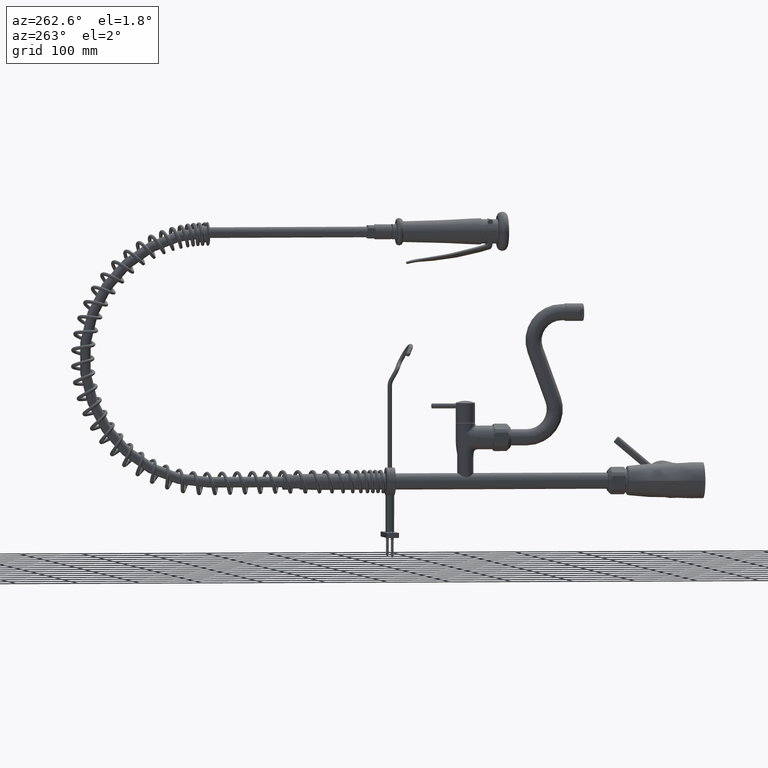
[diagram: clean part render]
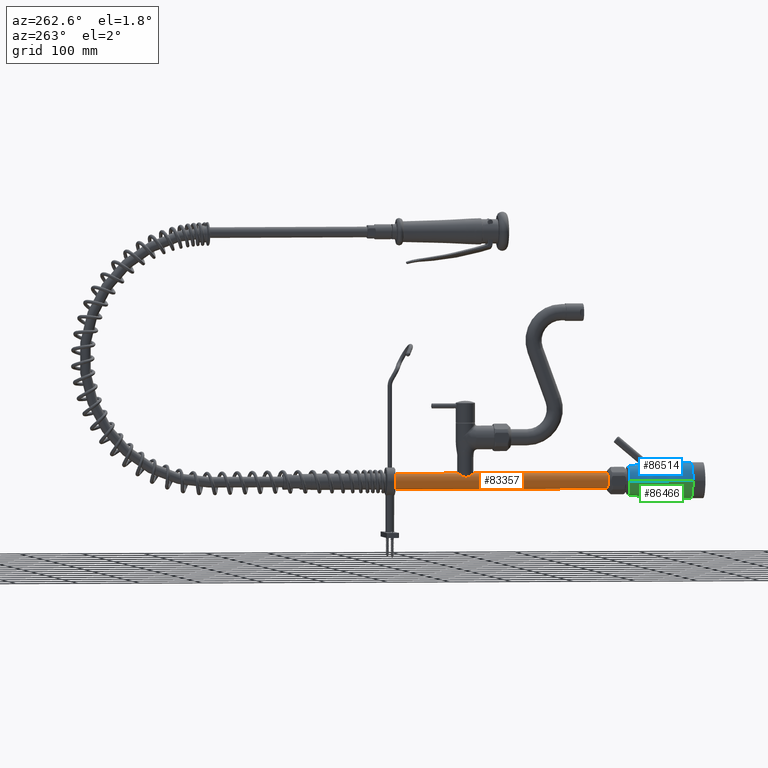
[diagram: same view with three faces highlighted in distinct colors, each labeled with its STEP entity id]
A machine part, auxiliary view with three faces highlighted in distinct colors.
Their STEP definitions:

[orange] entity #83357 — the highlighted cylindrical surface (edge-blend (fillet) strip) has radius 13 mm, axis along (0, 1, 0).
#1416=CARTESIAN_POINT('',(0.E0,1.55E2,0.E0));
#1417=DIRECTION('',(0.E0,1.E0,0.E0));
#1418=DIRECTION('',(0.E0,0.E0,-1.E0));
#1419=AXIS2_PLACEMENT_3D('',#1416,#1417,#1418);
#1440=CARTESIAN_POINT('',(2.362573127145E-14,3.710884572681E2,1.3E1));
#1541=CARTESIAN_POINT('',(2.383610362582E-14,3.969115427319E2,1.3E1));
#42753=CARTESIAN_POINT('',(2.424720580568E-14,4.98E2,0.E0));
#42754=DIRECTION('',(0.E0,1.E0,0.E0));
#42755=DIRECTION('',(0.E0,0.E0,-1.E0));
#42756=AXIS2_PLACEMENT_3D('',#42753,#42754,#42755);
#42761=DIRECTION('',(0.E0,-1.E0,0.E0));
#42762=VECTOR('',#42761,1.010884572681E2);
#42763=CARTESIAN_POINT('',(3.353677542233E-14,4.98E2,1.3E1));
#42764=LINE('',#42763,#42762);
#42768=CARTESIAN_POINT('',(2.383610362582E-14,3.969115427319E2,1.3E1));
#42769=CARTESIAN_POINT('',(-1.068027594549E-1,3.969115427319E2,1.3E1));
#42770=CARTESIAN_POINT('',(-3.206273026455E-1,3.969081873905E2,
1.299736777190E1));
#42771=CARTESIAN_POINT('',(-6.418739761263E-1,3.968930210425E2,
1.298547310126E1));
#42772=CARTESIAN_POINT('',(-9.632864027836E-1,3.968676633161E2,
1.296559618015E1));
#42773=CARTESIAN_POINT('',(-1.284654514927E0,3.968320657192E2,
1.293771518030E1));
#42774=CARTESIAN_POINT('',(-1.606582230855E0,3.967860403778E2,
1.290170613345E1));
#42775=CARTESIAN_POINT('',(-1.928641428140E0,3.967294751870E2,
1.285751214780E1));
#42776=CARTESIAN_POINT('',(-2.250288773213E0,3.966623407177E2,
1.280514858573E1));
#42777=CARTESIAN_POINT('',(-2.572978022084E0,3.965841125760E2,
1.274425405385E1));
#42778=CARTESIAN_POINT('',(-2.896321010995E0,3.964945490799E2,
1.267469913136E1));
#42779=CARTESIAN_POINT('',(-3.219704116067E0,3.963935227655E2,
1.259645422824E1));
#42780=CARTESIAN_POINT('',(-3.543399877358E0,3.962806190335E2,
1.250928026712E1));
#42781=CARTESIAN_POINT('',(-3.867397890142E0,3.961554308552E2,
1.241296073966E1));
#42782=CARTESIAN_POINT('',(-4.191150199503E0,3.960177455523E2,
1.230744605597E1));
#42783=CARTESIAN_POINT('',(-4.514907703198E0,3.958669898875E2,
1.219243025087E1));
#42784=CARTESIAN_POINT('',(-4.838666840187E0,3.957025888533E2,
1.206763326871E1));
#42785=CARTESIAN_POINT('',(-5.161629273442E0,3.955243518012E2,
1.193309440343E1));
#42786=CARTESIAN_POINT('',(-5.483774559776E0,3.953316609255E2,
1.178856089977E1));
#42787=CARTESIAN_POINT('',(-5.804842563359E0,3.951239389240E2,
1.163385179618E1));
#42788=CARTESIAN_POINT('',(-6.124215020875E0,3.949008034415E2,
1.146897573498E1));
#42789=CARTESIAN_POINT('',(-6.441444001675E0,3.946617313848E2,
1.129388742304E1));
#42790=CARTESIAN_POINT('',(-6.755858779615E0,3.944063209801E2,
1.110869067868E1));
#42791=CARTESIAN_POINT('',(-7.066641228531E0,3.941343012379E2,
1.091364767848E1));
#42792=CARTESIAN_POINT('',(-7.373335717315E0,3.938450492224E2,
1.070884690611E1));
#42793=CARTESIAN_POINT('',(-7.674831284932E0,3.935385309043E2,
1.049488353816E1));
#42794=CARTESIAN_POINT('',(-7.970192551846E0,3.932146009242E2,
1.027236583937E1));
#42795=CARTESIAN_POINT('',(-8.257988923178E0,3.928737540112E2,
1.004243763496E1));
#42796=CARTESIAN_POINT('',(-8.536851030887E0,3.925166392862E2,
9.806431742627E0));
#42797=CARTESIAN_POINT('',(-8.805115784050E0,3.921446045431E2,
9.566211275419E0));
#42798=CARTESIAN_POINT('',(-9.061718667195E0,3.917585585018E2,
9.323407321144E0));
#42799=CARTESIAN_POINT('',(-9.305534605609E0,3.913597593830E2,
9.079943757801E0));
#42800=CARTESIAN_POINT('',(-9.535161219487E0,3.909504557058E2,
8.838348417321E0));
#42801=CARTESIAN_POINT('',(-9.749880366392E0,3.905321790385E2,
8.600715196122E0));
#42802=CARTESIAN_POINT('',(-9.947448063676E0,3.901103726780E2,
8.371196119862E0));
#42803=CARTESIAN_POINT('',(-1.012735726618E1,3.896883740194E2,
8.152389854454E0));
#42804=CARTESIAN_POINT('',(-1.028978029195E1,3.892686279669E2,
7.946165602483E0));
#42805=CARTESIAN_POINT('',(-1.043516619930E1,3.888533169235E2,
7.754022202065E0));
#42806=CARTESIAN_POINT('',(-1.056374706554E1,3.884458953882E2,
7.577697335045E0));
#42807=CARTESIAN_POINT('',(-1.067671605279E1,3.880473662080E2,
7.417489644353E0));
#42808=CARTESIAN_POINT('',(-1.077543217290E1,3.876577310368E2,
7.273174251070E0));
#42809=CARTESIAN_POINT('',(-1.086107862824E1,3.872771502816E2,
7.144504029006E0));
#42810=CARTESIAN_POINT('',(-1.093481401514E1,3.869053421482E2,
7.031011300515E0));
#42811=CARTESIAN_POINT('',(-1.099765345392E1,3.865420821360E2,
6.932208482860E0));
#42812=CARTESIAN_POINT('',(-1.105057396106E1,3.861866011938E2,
6.847452055394E0));
#42813=CARTESIAN_POINT('',(-1.109438544580E1,3.858383190166E2,
6.776172803804E0));
#42814=CARTESIAN_POINT('',(-1.112985937455E1,3.854958628202E2,
6.717697497245E0));
#42815=CARTESIAN_POINT('',(-1.115756744325E1,3.851581555542E2,
6.671537002647E0));
#42816=CARTESIAN_POINT('',(-1.117793638292E1,3.848246180343E2,
6.637325591925E0));
#42817=CARTESIAN_POINT('',(-1.119134344011E1,3.844935961746E2,
6.614676958486E0));
#42818=CARTESIAN_POINT('',(-1.119798751431E1,3.841641941868E2,
6.603414288734E0));
#42819=CARTESIAN_POINT('',(-1.119798594770E1,3.838356543785E2,
6.603416947148E0));
#42820=CARTESIAN_POINT('',(-1.119133901950E1,3.835062577299E2,
6.614684443606E0));
#42821=CARTESIAN_POINT('',(-1.117792862856E1,3.831752285209E2,
6.637338662233E0));
#42822=CARTESIAN_POINT('',(-1.115755653075E1,3.828416924881E2,
6.671555264515E0));
#42823=CARTESIAN_POINT('',(-1.112984549199E1,3.825039869389E2,
6.717720521430E0));
#42824=CARTESIAN_POINT('',(-1.109436684552E1,3.821615184728E2,
6.776203284457E0));
#42825=CARTESIAN_POINT('',(-1.105055225287E1,3.818132408881E2,
6.847487114600E0));
#42826=CARTESIAN_POINT('',(-1.099762757136E1,3.814577566923E2,
6.932249586148E0));
#42827=CARTESIAN_POINT('',(-1.093478301117E1,3.810944904098E2,
7.031059578113E0));
#42828=CARTESIAN_POINT('',(-1.086104152889E1,3.807226742256E2,
7.144560488262E0));
#42829=CARTESIAN_POINT('',(-1.077539102731E1,3.803420972854E2,
7.273235230193E0));
#42830=CARTESIAN_POINT('',(-1.067667335354E1,3.799524750599E2,
7.417551121386E0));
#42831=CARTESIAN_POINT('',(-1.056370373117E1,3.795539607758E2,
7.577757677673E0));
#42832=CARTESIAN_POINT('',(-1.043512725040E1,3.791465663870E2,
7.754074603636E0));
#42833=CARTESIAN_POINT('',(-1.028973478587E1,3.787312479639E2,
7.946224676521E0));
#42834=CARTESIAN_POINT('',(-1.012730344033E1,3.783114934689E2,
8.152456798712E0));
#42835=CARTESIAN_POINT('',(-9.947392485929E0,3.778895034930E2,
8.371262086047E0));
#42836=CARTESIAN_POINT('',(-9.749825103512E0,3.774677079957E2,
8.600777984557E0));
#42837=CARTESIAN_POINT('',(-9.535091347815E0,3.770494139341E2,
8.838423915717E0));
#42838=CARTESIAN_POINT('',(-9.305469338114E0,3.766401300479E2,
9.080010382124E0));
#42839=CARTESIAN_POINT('',(-9.061666411906E0,3.762413600622E2,
9.323457926876E0));
#42840=CARTESIAN_POINT('',(-8.805067271207E0,3.758553255061E2,
9.566255897392E0));
#42841=CARTESIAN_POINT('',(-8.536800110001E0,3.754832926628E2,
9.806476179383E0));
#42842=CARTESIAN_POINT('',(-8.257925583775E0,3.751261676331E2,
1.004248991255E1));
#42843=CARTESIAN_POINT('',(-7.970120338029E0,3.747853168260E2,
1.027242185877E1));
#42844=CARTESIAN_POINT('',(-7.674763433205E0,3.744613976167E2,
1.049493307674E1));
#42845=CARTESIAN_POINT('',(-7.373267799058E0,3.741548842501E2,
1.070889368655E1));
#42846=CARTESIAN_POINT('',(-7.066569451101E0,3.738656334492E2,
1.091369421615E1));
#42847=CARTESIAN_POINT('',(-6.755780750136E0,3.735936131673E2,
1.110873816712E1));
#42848=CARTESIAN_POINT('',(-6.441365167803E0,3.733382069706E2,
1.129393235904E1));
#42849=CARTESIAN_POINT('',(-6.124136726043E0,3.730991397550E2,
1.146901753105E1));
#42850=CARTESIAN_POINT('',(-5.804764163393E0,3.728760083928E2,
1.163389088818E1));
#42851=CARTESIAN_POINT('',(-5.483696788876E0,3.726682906441E2,
1.178859710145E1));
#42852=CARTESIAN_POINT('',(-5.161546302259E0,3.724756004946E2,
1.193313030256E1));
#42853=CARTESIAN_POINT('',(-4.838587134586E0,3.722973690218E2,
1.206766516441E1));
#42854=CARTESIAN_POINT('',(-4.514830406486E0,3.721329724900E2,
1.219245888484E1));
#42855=CARTESIAN_POINT('',(-4.191070756136E0,3.719822191213E2,
1.230747307259E1));
#42856=CARTESIAN_POINT('',(-3.867327136420E0,3.718445405688E2,
1.241298268866E1));
#42857=CARTESIAN_POINT('',(-3.543333795348E0,3.717193566838E2,
1.250929898478E1));
#42858=CARTESIAN_POINT('',(-3.219636917424E0,3.716064550661E2,
1.259647137360E1));
#42859=CARTESIAN_POINT('',(-2.896262143305E0,3.715054337030E2,
1.267471248732E1));
#42860=CARTESIAN_POINT('',(-2.572925899883E0,3.714158739033E2,
1.274426456736E1));
#42861=CARTESIAN_POINT('',(-2.250235421425E0,3.713376472866E2,
1.280515793393E1));
#42862=CARTESIAN_POINT('',(-1.928598585766E0,3.712705167522E2,
1.285751844219E1));
#42863=CARTESIAN_POINT('',(-1.606554034232E0,3.712139552560E2,
1.290170954790E1));
#42864=CARTESIAN_POINT('',(-1.284632813907E0,3.711679315573E2,
1.293771731250E1));
#42865=CARTESIAN_POINT('',(-9.632681230268E-1,3.711323350339E2,
1.296559747325E1));
#42866=CARTESIAN_POINT('',(-6.418667191279E-1,3.711069786007E2,
1.298547338118E1));
#42867=CARTESIAN_POINT('',(-3.206253809486E-1,3.710918125828E2,
1.299736779286E1));
#42868=CARTESIAN_POINT('',(-1.068025374648E-1,3.710884572681E2,1.3E1));
#42869=CARTESIAN_POINT('',(2.362573127145E-14,3.710884572681E2,1.3E1));
#42874=DIRECTION('',(0.E0,-1.E0,0.E0));
#42875=VECTOR('',#42874,2.160884572681E2);
#42876=CARTESIAN_POINT('',(2.362573127145E-14,3.710884572681E2,1.3E1));
#42877=LINE('',#42876,#42875);
#42881=DIRECTION('',(0.E0,-1.E0,0.E0));
#42882=VECTOR('',#42881,3.43E2);
#42883=CARTESIAN_POINT('',(2.902562632584E-14,4.98E2,-1.3E1));
#42884=LINE('',#42883,#42882);
#49030=CARTESIAN_POINT('',(1.061035482565E-14,1.55E2,1.3E1));
#49031=CARTESIAN_POINT('',(0.E0,1.55E2,-1.3E1));
#49032=VERTEX_POINT('',#49030);
#49033=VERTEX_POINT('',#49031);
#49080=VERTEX_POINT('',#1440);
#49081=VERTEX_POINT('',#1541);
#49174=CARTESIAN_POINT('',(2.583919406565E-14,4.98E2,1.3E1));
#49175=CARTESIAN_POINT('',(2.424725838461E-14,4.98E2,-1.3E1));
#49176=VERTEX_POINT('',#49174);
#49177=VERTEX_POINT('',#49175);
#83343=CARTESIAN_POINT('',(0.E0,1.0375E2,0.E0));
#83344=DIRECTION('',(0.E0,1.E0,0.E0));
#83345=DIRECTION('',(0.E0,0.E0,-1.E0));
#83346=AXIS2_PLACEMENT_3D('',#83343,#83344,#83345);
#83347=CYLINDRICAL_SURFACE('',#83346,1.3E1);
#83348=ORIENTED_EDGE('',*,*,#51062,.T.);
#83349=ORIENTED_EDGE('',*,*,#51038,.T.);
#83351=ORIENTED_EDGE('',*,*,#83350,.T.);
#83352=ORIENTED_EDGE('',*,*,#51034,.T.);
#83353=ORIENTED_EDGE('',*,*,#50993,.F.);
#83354=ORIENTED_EDGE('',*,*,#51031,.F.);
#83355=EDGE_LOOP('',(#83348,#83349,#83351,#83352,#83353,#83354));
#83356=FACE_OUTER_BOUND('',#83355,.F.);
#1420=CIRCLE('',#1419,1.3E1);
#42757=CIRCLE('',#42756,1.3E1);
#42870=B_SPLINE_CURVE_WITH_KNOTS('',3,(#42768,#42769,#42770,#42771,#42772,
#42773,#42774,#42775,#42776,#42777,#42778,#42779,#42780,#42781,#42782,#42783,
#42784,#42785,#42786,#42787,#42788,#42789,#42790,#42791,#42792,#42793,#42794,
#42795,#42796,#42797,#42798,#42799,#42800,#42801,#42802,#42803,#42804,#42805,
#42806,#42807,#42808,#42809,#42810,#42811,#42812,#42813,#42814,#42815,#42816,
#42817,#42818,#42819,#42820,#42821,#42822,#42823,#42824,#42825,#42826,#42827,
#42828,#42829,#42830,#42831,#42832,#42833,#42834,#42835,#42836,#42837,#42838,
#42839,#42840,#42841,#42842,#42843,#42844,#42845,#42846,#42847,#42848,#42849,
#42850,#42851,#42852,#42853,#42854,#42855,#42856,#42857,#42858,#42859,#42860,
#42861,#42862,#42863,#42864,#42865,#42866,#42867,#42868,#42869),.UNSPECIFIED.,
.F.,.F.,(4,1,1,1,1,1,1,1,1,1,1,1,1,1,1,1,1,1,1,1,1,1,1,1,1,1,1,1,1,1,1,1,1,1,1,
1,1,1,1,1,1,1,1,1,1,1,1,1,1,1,1,1,1,1,1,1,1,1,1,1,1,1,1,1,1,1,1,1,1,1,1,1,1,1,1,
1,1,1,1,1,1,1,1,1,1,1,1,1,1,1,1,1,1,1,1,1,1,1,1,4),(0.E0,1.010101010101E-2,
2.020202020202E-2,3.030303030303E-2,4.040404040404E-2,5.050505050505E-2,
6.060606060606E-2,7.070707070707E-2,8.080808080808E-2,9.090909090909E-2,
1.010101010101E-1,1.111111111111E-1,1.212121212121E-1,1.313131313131E-1,
1.414141414141E-1,1.515151515152E-1,1.616161616162E-1,1.717171717172E-1,
1.818181818182E-1,1.919191919192E-1,2.020202020202E-1,2.121212121212E-1,
2.222222222222E-1,2.323232323232E-1,2.424242424242E-1,2.525252525253E-1,
2.626262626263E-1,2.727272727273E-1,2.828282828283E-1,2.929292929293E-1,
3.030303030303E-1,3.131313131313E-1,3.232323232323E-1,3.333333333333E-1,
3.434343434343E-1,3.535353535354E-1,3.636363636364E-1,3.737373737374E-1,
3.838383838384E-1,3.939393939394E-1,4.040404040404E-1,4.141414141414E-1,
4.242424242424E-1,4.343434343434E-1,4.444444444444E-1,4.545454545455E-1,
4.646464646465E-1,4.747474747475E-1,4.848484848485E-1,4.949494949495E-1,
5.050505050505E-1,5.151515151515E-1,5.252525252525E-1,5.353535353535E-1,
5.454545454545E-1,5.555555555556E-1,5.656565656566E-1,5.757575757576E-1,
5.858585858586E-1,5.959595959596E-1,6.060606060606E-1,6.161616161616E-1,
6.262626262626E-1,6.363636363636E-1,6.464646464646E-1,6.565656565657E-1,
6.666666666667E-1,6.767676767677E-1,6.868686868687E-1,6.969696969697E-1,
7.070707070707E-1,7.171717171717E-1,7.272727272727E-1,7.373737373737E-1,
7.474747474747E-1,7.575757575758E-1,7.676767676768E-1,7.777777777778E-1,
7.878787878788E-1,7.979797979798E-1,8.080808080808E-1,8.181818181818E-1,
8.282828282828E-1,8.383838383838E-1,8.484848484848E-1,8.585858585859E-1,
8.686868686869E-1,8.787878787879E-1,8.888888888889E-1,8.989898989899E-1,
9.090909090909E-1,9.191919191919E-1,9.292929292929E-1,9.393939393939E-1,
9.494949494949E-1,9.595959595960E-1,9.696969696970E-1,9.797979797980E-1,
9.898989898990E-1,1.E0),.UNSPECIFIED.);
#50993=EDGE_CURVE('',#49033,#49032,#1420,.T.);
#51031=EDGE_CURVE('',#49177,#49033,#42884,.T.);
#51034=EDGE_CURVE('',#49080,#49032,#42877,.T.);
#51038=EDGE_CURVE('',#49176,#49081,#42764,.T.);
#51062=EDGE_CURVE('',#49177,#49176,#42757,.T.);
#83350=EDGE_CURVE('',#49081,#49080,#42870,.T.);
#83357=ADVANCED_FACE('',(#83356),#83347,.T.);

[blue] entity #86514 — the highlighted face is a freeform B-spline surface patch.
#46798=CARTESIAN_POINT('',(2.222483315655E-14,1.209801908876E2,0.E0));
#46799=DIRECTION('',(0.E0,1.E0,0.E0));
#46800=DIRECTION('',(-1.E0,0.E0,0.E0));
#46801=AXIS2_PLACEMENT_3D('',#46798,#46799,#46800);
#46806=CARTESIAN_POINT('',(-9.377045454545E2,2.E1,-1.148356570137E-13));
#46807=DIRECTION('',(0.E0,0.E0,-1.E0));
#46808=DIRECTION('',(9.945281455174E-1,1.044689799593E-1,0.E0));
#46809=AXIS2_PLACEMENT_3D('',#46806,#46807,#46808);
#46814=CARTESIAN_POINT('',(9.377045454545E2,2.E1,0.E0));
#46815=DIRECTION('',(0.E0,0.E0,1.E0));
#46816=DIRECTION('',(-9.945281455174E-1,1.044689799593E-1,0.E0));
#46817=AXIS2_PLACEMENT_3D('',#46814,#46815,#46816);
#46822=CARTESIAN_POINT('',(2.650550156758E1,8.799504048502E1,
-7.931748644661E-9));
#46823=CARTESIAN_POINT('',(2.650550321507E1,8.799500576940E1,
2.577802362688E-1));
#46824=CARTESIAN_POINT('',(2.649866406319E1,8.798539533703E1,
7.750772611048E-1));
#46825=CARTESIAN_POINT('',(2.646742192747E1,8.794225554507E1,1.555446008014E0));
#46826=CARTESIAN_POINT('',(2.641476121421E1,8.786972451362E1,2.340602900860E0));
#46827=CARTESIAN_POINT('',(2.634018530382E1,8.776695879380E1,3.130424697151E0));
#46828=CARTESIAN_POINT('',(2.624317177370E1,8.763299604001E1,3.924760518181E0));
#46829=CARTESIAN_POINT('',(2.612310905665E1,8.746730807959E1,4.723481726660E0));
#46830=CARTESIAN_POINT('',(2.597936734750E1,8.726912042123E1,5.526319931510E0));
#46831=CARTESIAN_POINT('',(2.581133206561E1,8.703756702833E1,6.332826267043E0));
#46832=CARTESIAN_POINT('',(2.561799261258E1,8.677098064594E1,7.144065781782E0));
#46833=CARTESIAN_POINT('',(2.539810877435E1,8.646781512667E1,7.960969672166E0));
#46834=CARTESIAN_POINT('',(2.515030445223E1,8.612635146366E1,8.784170873239E0));
#46835=CARTESIAN_POINT('',(2.487313998024E1,8.574470757676E1,9.613868071742E0));
#46836=CARTESIAN_POINT('',(2.456518979332E1,8.532085211655E1,1.044977318875E1));
#46837=CARTESIAN_POINT('',(2.422499414355E1,8.485254017614E1,1.129136325818E1));
#46838=CARTESIAN_POINT('',(2.385102259310E1,8.433786264441E1,1.213792199464E1));
#46839=CARTESIAN_POINT('',(2.344141111084E1,8.377438079136E1,1.298913770953E1));
#46840=CARTESIAN_POINT('',(2.299421871163E1,8.315973838493E1,1.384435929203E1));
#46841=CARTESIAN_POINT('',(2.250765844341E1,8.249107539508E1,1.470237759165E1));
#46842=CARTESIAN_POINT('',(2.197980980416E1,8.176567229491E1,1.556188550927E1));
#46843=CARTESIAN_POINT('',(2.140874819928E1,8.098090818005E1,1.642126483533E1));
#46844=CARTESIAN_POINT('',(2.079253826941E1,8.013456091803E1,1.727859361527E1));
#46845=CARTESIAN_POINT('',(2.012952228119E1,7.922414918299E1,1.813140453481E1));
#46846=CARTESIAN_POINT('',(1.941835728606E1,7.824724428777E1,1.897675077549E1));
#46847=CARTESIAN_POINT('',(1.865774785163E1,7.720184614323E1,1.981154058167E1));
#46848=CARTESIAN_POINT('',(1.784655350866E1,7.608664473974E1,2.063239389343E1));
#46849=CARTESIAN_POINT('',(1.698450431181E1,7.490031933260E1,2.143519315978E1));
#46850=CARTESIAN_POINT('',(1.607133113759E1,7.364151379777E1,2.221596063032E1));
#46851=CARTESIAN_POINT('',(1.510818489522E1,7.231121224951E1,2.296966098799E1));
#46852=CARTESIAN_POINT('',(1.409792353983E1,7.091102320946E1,2.369068789733E1));
#46853=CARTESIAN_POINT('',(1.304032389748E1,6.943868818069E1,2.437608257085E1));
#46854=CARTESIAN_POINT('',(1.193710698165E1,6.789236046227E1,2.502147944653E1));
#46855=CARTESIAN_POINT('',(1.081158776977E1,6.629992912654E1,2.561179790150E1));
#46856=CARTESIAN_POINT('',(9.724868654236E0,6.473937643163E1,2.612041615467E1));
#46857=CARTESIAN_POINT('',(8.762524902976E0,6.333008650939E1,2.652425518856E1));
#46858=CARTESIAN_POINT('',(7.921918995974E0,6.207070488728E1,2.684381557100E1));
#46859=CARTESIAN_POINT('',(7.197284042712E0,6.095066803807E1,2.709572820898E1));
#46860=CARTESIAN_POINT('',(6.570009532270E0,5.993971309371E1,2.729733457327E1));
#46861=CARTESIAN_POINT('',(6.030304942335E0,5.902772055056E1,2.745913106846E1));
#46862=CARTESIAN_POINT('',(5.571193945034E0,5.820395615988E1,2.758906706019E1));
#46863=CARTESIAN_POINT('',(5.181336071904E0,5.746319355207E1,2.769409305082E1));
#46864=CARTESIAN_POINT('',(4.858324767791E0,5.678700245143E1,2.777867888024E1));
#46865=CARTESIAN_POINT('',(4.597488073597E0,5.616520288936E1,2.784663444456E1));
#46866=CARTESIAN_POINT('',(4.388838437177E0,5.559688880895E1,2.790151547917E1));
#46867=CARTESIAN_POINT('',(4.224787126848E0,5.507914765958E1,2.794588494335E1));
#46868=CARTESIAN_POINT('',(4.102815580798E0,5.461012373313E1,2.798108239540E1));
#46869=CARTESIAN_POINT('',(4.017395574320E0,5.418903442516E1,2.800858194583E1));
#46870=CARTESIAN_POINT('',(3.960700830789E0,5.380143539737E1,2.803040984341E1));
#46871=CARTESIAN_POINT('',(3.927388487084E0,5.342191553508E1,2.804842312470E1));
#46872=CARTESIAN_POINT('',(3.917145070897E0,5.303075910421E1,2.806343243949E1));
#46873=CARTESIAN_POINT('',(3.928031791422E0,5.262203631746E1,2.807596219370E1));
#46874=CARTESIAN_POINT('',(3.964020956777E0,5.218895049647E1,2.808550718505E1));
#46875=CARTESIAN_POINT('',(4.003351664417E0,5.187786523260E1,2.809052720433E1));
#46876=CARTESIAN_POINT('',(4.030719544120E0,5.171782581966E1,2.809184103671E1));
#47011=CARTESIAN_POINT('',(2.650550156758E1,8.799504048502E1,
-7.931748644661E-9));
#47300=CARTESIAN_POINT('',(0.E0,2.E1,0.E0));
#47301=DIRECTION('',(0.E0,1.E0,0.E0));
#47302=DIRECTION('',(-1.E0,0.E0,0.E0));
#47303=AXIS2_PLACEMENT_3D('',#47300,#47301,#47302);
#47371=CARTESIAN_POINT('',(4.030719544120E0,5.171782581966E1,2.809184103671E1));
#47372=CARTESIAN_POINT('',(4.056857018608E0,5.157283897684E1,2.809290054752E1));
#47373=CARTESIAN_POINT('',(4.118004036888E0,5.128340292716E1,2.809348792987E1));
#47374=CARTESIAN_POINT('',(4.231556768315E0,5.084944046184E1,2.809079133923E1));
#47375=CARTESIAN_POINT('',(4.367311506481E0,5.041792769623E1,2.808387610398E1));
#47376=CARTESIAN_POINT('',(4.522606933936E0,4.998980431921E1,2.807287808690E1));
#47377=CARTESIAN_POINT('',(4.694246583885E0,4.956377125667E1,2.805803410588E1));
#47378=CARTESIAN_POINT('',(4.884067341040E0,4.912948342173E1,2.803905534630E1));
#47379=CARTESIAN_POINT('',(5.094547114249E0,4.868362996253E1,2.801518105994E1));
#47380=CARTESIAN_POINT('',(5.317582309102E0,4.824048271588E1,2.798701596314E1));
#47381=CARTESIAN_POINT('',(5.551073863643E0,4.779782214789E1,2.795477521884E1));
#47382=CARTESIAN_POINT('',(5.806895480901E0,4.733360374035E1,2.791637642532E1));
#47383=CARTESIAN_POINT('',(6.095517870084E0,4.683073259932E1,2.786935785041E1));
#47384=CARTESIAN_POINT('',(6.429161224774E0,4.626888126208E1,2.781034813244E1));
#47385=CARTESIAN_POINT('',(6.813481765266E0,4.564301280379E1,2.773627708502E1));
#47386=CARTESIAN_POINT('',(7.250649419685E0,4.495247512137E1,2.764422281167E1));
#47387=CARTESIAN_POINT('',(7.741951204955E0,4.419620475785E1,2.753104563197E1));
#47388=CARTESIAN_POINT('',(8.295651413591E0,4.336410071234E1,2.739121560692E1));
#47389=CARTESIAN_POINT('',(8.919818265989E0,4.244470862121E1,2.721797350690E1));
#47390=CARTESIAN_POINT('',(9.625409897444E0,4.142416944266E1,2.700206870136E1));
#47391=CARTESIAN_POINT('',(1.042753308288E1,4.028197919503E1,2.673026928814E1));
#47392=CARTESIAN_POINT('',(1.133604194250E1,3.900585218327E1,2.638785631741E1));
#47393=CARTESIAN_POINT('',(1.236824585895E1,3.757313617966E1,2.595227019204E1));
#47394=CARTESIAN_POINT('',(1.348236699224E1,3.604216578764E1,2.542267799717E1));
#47395=CARTESIAN_POINT('',(1.460388642347E1,3.451307974631E1,2.482373778081E1));
#47396=CARTESIAN_POINT('',(1.569904128628E1,3.302886776417E1,2.417093797016E1));
#47397=CARTESIAN_POINT('',(1.673826185450E1,3.162681575437E1,2.348462406799E1));
#47398=CARTESIAN_POINT('',(1.772697990480E1,3.029747376035E1,2.276628129457E1));
#47399=CARTESIAN_POINT('',(1.866865015547E1,2.903489015476E1,2.201687147483E1));
#47400=CARTESIAN_POINT('',(1.956208378544E1,2.783959499451E1,2.124076089990E1));
#47401=CARTESIAN_POINT('',(2.040554705852E1,2.671302672962E1,2.044329356061E1));
#47402=CARTESIAN_POINT('',(2.119829351913E1,2.565582670934E1,1.962950882050E1));
#47403=CARTESIAN_POINT('',(2.194177848687E1,2.466516648119E1,1.880240627352E1));
#47404=CARTESIAN_POINT('',(2.263755876547E1,2.373900647522E1,1.796463520745E1));
#47405=CARTESIAN_POINT('',(2.328737467011E1,2.287494581238E1,1.711840469904E1));
#47406=CARTESIAN_POINT('',(2.389285201761E1,2.207037462655E1,1.626581476963E1));
#47407=CARTESIAN_POINT('',(2.445541880273E1,2.132287763309E1,1.540903054182E1));
#47408=CARTESIAN_POINT('',(2.497657498339E1,2.063065965324E1,1.455005397580E1));
#47409=CARTESIAN_POINT('',(2.529765625389E1,2.020446149430E1,1.397651015966E1));
#47410=CARTESIAN_POINT('',(2.545171483876E1,1.999999980119E1,1.369012388335E1));
#48849=VERTEX_POINT('',#47371);
#48850=VERTEX_POINT('',#47410);
#48859=VERTEX_POINT('',#47011);
#48861=CARTESIAN_POINT('',(-2.89E1,2.E1,0.E0));
#48862=VERTEX_POINT('',#48861);
#48867=CARTESIAN_POINT('',(-2.361088058505E1,1.209801908876E2,0.E0));
#48868=CARTESIAN_POINT('',(2.361088058505E1,1.209801908876E2,0.E0));
#48869=VERTEX_POINT('',#48867);
#48870=VERTEX_POINT('',#48868);
#86474=CARTESIAN_POINT('',(2.335123369365E1,1.229921925767E2,
-1.469135097798E0));
#86475=CARTESIAN_POINT('',(2.708247668866E1,8.810415715091E1,
-1.703885009272E0));
#86476=CARTESIAN_POINT('',(2.891415977087E1,5.306440894162E1,
-1.819124740903E0));
#86477=CARTESIAN_POINT('',(2.884085905090E1,1.797670591882E1,
-1.814513050497E0));
#86478=CARTESIAN_POINT('',(2.425533737207E1,1.229921925767E2,1.290118136244E1));
#86479=CARTESIAN_POINT('',(2.813104513332E1,8.810415715091E1,1.496263315627E1));
#86480=CARTESIAN_POINT('',(3.003364658474E1,5.306440894162E1,1.597460862413E1));
#86481=CARTESIAN_POINT('',(2.995750783696E1,1.797670591882E1,1.593411115429E1));
#86482=CARTESIAN_POINT('',(1.439872906297E1,1.229921925767E2,2.339740312408E1));
#86483=CARTESIAN_POINT('',(1.669947075645E1,8.810415715091E1,2.713602343227E1));
#86484=CARTESIAN_POINT('',(1.782891465548E1,5.306440894162E1,2.897132806895E1));
#86485=CARTESIAN_POINT('',(1.778371630661E1,1.797670591882E1,2.889788242077E1));
#86486=CARTESIAN_POINT('',(2.475626974121E-14,1.229921925767E2,
2.339740312408E1));
#86487=CARTESIAN_POINT('',(1.555006856399E-14,8.810415715091E1,
2.713602343227E1));
#86488=CARTESIAN_POINT('',(0.E0,5.306440894162E1,2.897132806895E1));
#86489=CARTESIAN_POINT('',(0.E0,1.797670591882E1,2.889788242077E1));
#86490=CARTESIAN_POINT('',(-1.439872906297E1,1.229921925767E2,
2.339740312408E1));
#86491=CARTESIAN_POINT('',(-1.669947075645E1,8.810415715091E1,
2.713602343227E1));
#86492=CARTESIAN_POINT('',(-1.782891465548E1,5.306440894162E1,
2.897132806895E1));
#86493=CARTESIAN_POINT('',(-1.778371630661E1,1.797670591882E1,
2.889788242077E1));
#86494=CARTESIAN_POINT('',(-2.425533737207E1,1.229921925767E2,
1.290118136244E1));
#86495=CARTESIAN_POINT('',(-2.813104513332E1,8.810415715091E1,
1.496263315627E1));
#86496=CARTESIAN_POINT('',(-3.003364658474E1,5.306440894162E1,
1.597460862413E1));
#86497=CARTESIAN_POINT('',(-2.995750783696E1,1.797670591882E1,
1.593411115429E1));
#86498=CARTESIAN_POINT('',(-2.335123369365E1,1.229921925767E2,
-1.469135097798E0));
#86499=CARTESIAN_POINT('',(-2.708247668866E1,8.810415715091E1,
-1.703885009272E0));
#86500=CARTESIAN_POINT('',(-2.891415977087E1,5.306440894162E1,
-1.819124740903E0));
#86501=CARTESIAN_POINT('',(-2.884085905090E1,1.797670591882E1,
-1.814513050497E0));
#86502=(BOUNDED_SURFACE()B_SPLINE_SURFACE(3,3,((#86474,#86475,#86476,#86477),(
#86478,#86479,#86480,#86481),(#86482,#86483,#86484,#86485),(#86486,#86487,
#86488,#86489),(#86490,#86491,#86492,#86493),(#86494,#86495,#86496,#86497),(
#86498,#86499,#86500,#86501)),.UNSPECIFIED.,.F.,.F.,.F.)B_SPLINE_SURFACE_WITH_KNOTS((4,3,4),(4,4),(0.E0,1.E0,2.E0),(0.E0,1.E0),.UNSPECIFIED.)GEOMETRIC_REPRESENTATION_ITEM()RATIONAL_B_SPLINE_SURFACE(((1.188142299553E0,1.186969543475E0,
1.186969543475E0,1.188142299553E0),(9.382736815777E-1,9.373475583656E-1,
9.373475583656E-1,9.382736815777E-1),(9.382736815777E-1,9.373475583656E-1,
9.373475583656E-1,9.382736815777E-1),(1.188142299553E0,1.186969543475E0,
1.186969543475E0,1.188142299553E0),(9.382736815777E-1,9.373475583656E-1,
9.373475583656E-1,9.382736815777E-1),(9.382736815777E-1,9.373475583656E-1,
9.373475583656E-1,9.382736815777E-1),(1.188142299553E0,1.186969543475E0,
1.186969543475E0,1.188142299553E0)))REPRESENTATION_ITEM('')SURFACE());
#86503=ORIENTED_EDGE('',*,*,#50174,.T.);
#86504=ORIENTED_EDGE('',*,*,#86462,.T.);
#86506=ORIENTED_EDGE('',*,*,#86505,.T.);
#86508=ORIENTED_EDGE('',*,*,#86507,.T.);
#86510=ORIENTED_EDGE('',*,*,#86509,.F.);
#86511=ORIENTED_EDGE('',*,*,#86454,.F.);
#86512=EDGE_LOOP('',(#86503,#86504,#86506,#86508,#86510,#86511));
#86513=FACE_OUTER_BOUND('',#86512,.F.);
#46802=CIRCLE('',#46801,2.361088058505E1);
#46810=CIRCLE('',#46809,9.666045454545E2);
#46818=CIRCLE('',#46817,9.666045454545E2);
#46877=B_SPLINE_CURVE_WITH_KNOTS('',3,(#46822,#46823,#46824,#46825,#46826,
#46827,#46828,#46829,#46830,#46831,#46832,#46833,#46834,#46835,#46836,#46837,
#46838,#46839,#46840,#46841,#46842,#46843,#46844,#46845,#46846,#46847,#46848,
#46849,#46850,#46851,#46852,#46853,#46854,#46855,#46856,#46857,#46858,#46859,
#46860,#46861,#46862,#46863,#46864,#46865,#46866,#46867,#46868,#46869,#46870,
#46871,#46872,#46873,#46874,#46875,#46876),.UNSPECIFIED.,.F.,.F.,(4,1,1,1,1,1,1,
1,1,1,1,1,1,1,1,1,1,1,1,1,1,1,1,1,1,1,1,1,1,1,1,1,1,1,1,1,1,1,1,1,1,1,1,1,1,1,1,
1,1,1,1,1,4),(0.E0,1.923076923077E-2,3.846153846154E-2,5.769230769231E-2,
7.692307692308E-2,9.615384615385E-2,1.153846153846E-1,1.346153846154E-1,
1.538461538462E-1,1.730769230769E-1,1.923076923077E-1,2.115384615385E-1,
2.307692307692E-1,2.5E-1,2.692307692308E-1,2.884615384615E-1,3.076923076923E-1,
3.269230769231E-1,3.461538461538E-1,3.653846153846E-1,3.846153846154E-1,
4.038461538462E-1,4.230769230769E-1,4.423076923077E-1,4.615384615385E-1,
4.807692307692E-1,5.E-1,5.192307692308E-1,5.384615384615E-1,5.576923076923E-1,
5.769230769231E-1,5.961538461538E-1,6.153846153846E-1,6.346153846154E-1,
6.538461538462E-1,6.730769230769E-1,6.923076923077E-1,7.115384615385E-1,
7.307692307692E-1,7.5E-1,7.692307692308E-1,7.884615384615E-1,8.076923076923E-1,
8.269230769231E-1,8.461538461538E-1,8.653846153846E-1,8.846153846154E-1,
9.038461538462E-1,9.230769230769E-1,9.423076923077E-1,9.615384615385E-1,
9.807692307692E-1,1.E0),.UNSPECIFIED.);
#47304=CIRCLE('',#47303,2.89E1);
#47411=B_SPLINE_CURVE_WITH_KNOTS('',3,(#47371,#47372,#47373,#47374,#47375,
#47376,#47377,#47378,#47379,#47380,#47381,#47382,#47383,#47384,#47385,#47386,
#47387,#47388,#47389,#47390,#47391,#47392,#47393,#47394,#47395,#47396,#47397,
#47398,#47399,#47400,#47401,#47402,#47403,#47404,#47405,#47406,#47407,#47408,
#47409,#47410),.UNSPECIFIED.,.F.,.F.,(4,1,1,1,1,1,1,1,1,1,1,1,1,1,1,1,1,1,1,1,1,
1,1,1,1,1,1,1,1,1,1,1,1,1,1,1,1,4),(0.E0,2.702702702703E-2,5.405405405405E-2,
8.108108108108E-2,1.081081081081E-1,1.351351351351E-1,1.621621621622E-1,
1.891891891892E-1,2.162162162162E-1,2.432432432432E-1,2.702702702703E-1,
2.972972972973E-1,3.243243243243E-1,3.513513513514E-1,3.783783783784E-1,
4.054054054054E-1,4.324324324324E-1,4.594594594595E-1,4.864864864865E-1,
5.135135135135E-1,5.405405405405E-1,5.675675675676E-1,5.945945945946E-1,
6.216216216216E-1,6.486486486486E-1,6.756756756757E-1,7.027027027027E-1,
7.297297297297E-1,7.567567567568E-1,7.837837837838E-1,8.108108108108E-1,
8.378378378378E-1,8.648648648649E-1,8.918918918919E-1,9.189189189189E-1,
9.459459459459E-1,9.729729729730E-1,1.E0),.UNSPECIFIED.);
#50174=EDGE_CURVE('',#48869,#48870,#46802,.T.);
#86454=EDGE_CURVE('',#48869,#48862,#46818,.T.);
#86462=EDGE_CURVE('',#48870,#48859,#46810,.T.);
#86505=EDGE_CURVE('',#48859,#48849,#46877,.T.);
#86507=EDGE_CURVE('',#48849,#48850,#47411,.T.);
#86509=EDGE_CURVE('',#48862,#48850,#47304,.T.);
#86514=ADVANCED_FACE('',(#86513),#86502,.T.);

[green] entity #86466 — the highlighted face is a freeform B-spline surface patch.
#46790=CARTESIAN_POINT('',(2.222483315655E-14,1.209801908876E2,0.E0));
#46791=DIRECTION('',(0.E0,1.E0,0.E0));
#46792=DIRECTION('',(1.E0,0.E0,0.E0));
#46793=AXIS2_PLACEMENT_3D('',#46790,#46791,#46792);
#46806=CARTESIAN_POINT('',(-9.377045454545E2,2.E1,-1.148356570137E-13));
#46807=DIRECTION('',(0.E0,0.E0,-1.E0));
#46808=DIRECTION('',(9.945281455174E-1,1.044689799593E-1,0.E0));
#46809=AXIS2_PLACEMENT_3D('',#46806,#46807,#46808);
#46814=CARTESIAN_POINT('',(9.377045454545E2,2.E1,0.E0));
#46815=DIRECTION('',(0.E0,0.E0,1.E0));
#46816=DIRECTION('',(-9.945281455174E-1,1.044689799593E-1,0.E0));
#46817=AXIS2_PLACEMENT_3D('',#46814,#46815,#46816);
#46954=CARTESIAN_POINT('',(4.030738334107E0,5.171782442953E1,
-2.809175823024E1));
#46955=CARTESIAN_POINT('',(4.015423897803E0,5.180318138072E1,
-2.809112762212E1));
#46956=CARTESIAN_POINT('',(3.987876131238E0,5.197478615038E1,
-2.808935436749E1));
#46957=CARTESIAN_POINT('',(3.954478491812E0,5.223588737530E1,
-2.808530486639E1));
#46958=CARTESIAN_POINT('',(3.930947208494E0,5.249769063643E1,
-2.807974949118E1));
#46959=CARTESIAN_POINT('',(3.917996965504E0,5.275693466146E1,
-2.807271674220E1));
#46960=CARTESIAN_POINT('',(3.915284877995E0,5.301616179473E1,
-2.806418552034E1));
#46961=CARTESIAN_POINT('',(3.922662297330E0,5.329176968183E1,
-2.805360786354E1));
#46962=CARTESIAN_POINT('',(3.942849680961E0,5.359720633364E1,
-2.804010736625E1));
#46963=CARTESIAN_POINT('',(3.981783322335E0,5.394811630080E1,
-2.802223094406E1));
#46964=CARTESIAN_POINT('',(4.047345856037E0,5.434337800758E1,
-2.799875004925E1));
#46965=CARTESIAN_POINT('',(4.144186513495E0,5.477802049841E1,
-2.796890545082E1));
#46966=CARTESIAN_POINT('',(4.275249540493E0,5.524760353144E1,
-2.793201768077E1));
#46967=CARTESIAN_POINT('',(4.444871687020E0,5.575965632506E1,
-2.788656944554E1));
#46968=CARTESIAN_POINT('',(4.662100569936E0,5.632101941747E1,
-2.782999304599E1));
#46969=CARTESIAN_POINT('',(4.935021091400E0,5.694263754769E1,
-2.775917207234E1));
#46970=CARTESIAN_POINT('',(5.271426059639E0,5.763694119724E1,
-2.767029002474E1));
#46971=CARTESIAN_POINT('',(5.680488446106E0,5.840861751778E1,
-2.755862484999E1));
#46972=CARTESIAN_POINT('',(6.166241717785E0,5.926450033046E1,
-2.741929913956E1));
#46973=CARTESIAN_POINT('',(6.737252593394E0,6.021374149638E1,
-2.724511809840E1));
#46974=CARTESIAN_POINT('',(7.402159305698E0,6.126991034991E1,
-2.702682528614E1));
#46975=CARTESIAN_POINT('',(8.170031064804E0,6.244591111391E1,
-2.675269011317E1));
#46976=CARTESIAN_POINT('',(9.055213794362E0,6.376275977275E1,
-2.640600824470E1));
#46977=CARTESIAN_POINT('',(1.008317399285E1,6.525701170124E1,
-2.595950180168E1));
#46978=CARTESIAN_POINT('',(1.120984975836E1,6.686542659662E1,
-2.541060710005E1));
#46979=CARTESIAN_POINT('',(1.232242760119E1,6.843384681973E1,
-2.480344534437E1));
#46980=CARTESIAN_POINT('',(1.339474951730E1,6.993297014185E1,
-2.415364440801E1));
#46981=CARTESIAN_POINT('',(1.442696022678E1,7.136764075676E1,
-2.346307039388E1));
#46982=CARTESIAN_POINT('',(1.541306776627E1,7.273260896293E1,
-2.273816173409E1));
#46983=CARTESIAN_POINT('',(1.635075660945E1,7.402698432367E1,
-2.198395247528E1));
#46984=CARTESIAN_POINT('',(1.723912751479E1,7.525074856708E1,
-2.120481477582E1));
#46985=CARTESIAN_POINT('',(1.807764799019E1,7.640448245293E1,
-2.040510587445E1));
#46986=CARTESIAN_POINT('',(1.886648382761E1,7.748873673987E1,
-1.958883488417E1));
#46987=CARTESIAN_POINT('',(1.960613281856E1,7.850503695214E1,
-1.875976818238E1));
#46988=CARTESIAN_POINT('',(2.029753331744E1,7.945480285203E1,
-1.792133258798E1));
#46989=CARTESIAN_POINT('',(2.094210562317E1,8.033997363605E1,
-1.707635907854E1));
#46990=CARTESIAN_POINT('',(2.154123791647E1,8.116296672417E1,
-1.622757284681E1));
#46991=CARTESIAN_POINT('',(2.209658420479E1,8.192609610664E1,
-1.537727314724E1));
#46992=CARTESIAN_POINT('',(2.260998400594E1,8.263161094702E1,
-1.452731714434E1));
#46993=CARTESIAN_POINT('',(2.308329165936E1,8.328203016882E1,
-1.367925680147E1));
#46994=CARTESIAN_POINT('',(2.351834238331E1,8.388023746661E1,
-1.283434414388E1));
#46995=CARTESIAN_POINT('',(2.391699789393E1,8.442873366351E1,
-1.199351935821E1));
#46996=CARTESIAN_POINT('',(2.428121539449E1,8.492998269459E1,
-1.115712334076E1));
#46997=CARTESIAN_POINT('',(2.461262330014E1,8.538608266880E1,
-1.032577225239E1));
#46998=CARTESIAN_POINT('',(2.491268234239E1,8.579905886386E1,
-9.500156473035E0));
#46999=CARTESIAN_POINT('',(2.518279611022E1,8.617111095832E1,
-8.680776670625E0));
#47000=CARTESIAN_POINT('',(2.542439732703E1,8.650409829784E1,
-7.867749164048E0));
#47001=CARTESIAN_POINT('',(2.563890322373E1,8.679986630073E1,
-7.060703314749E0));
#47002=CARTESIAN_POINT('',(2.582763369616E1,8.705998696155E1,
-6.258960211626E0));
#47003=CARTESIAN_POINT('',(2.599176646900E1,8.728617128339E1,
-5.461453378818E0));
#47004=CARTESIAN_POINT('',(2.613215546808E1,8.747979109969E1,
-4.667660959651E0));
#47005=CARTESIAN_POINT('',(2.624939423740E1,8.764162198251E1,
-3.878136331713E0));
#47006=CARTESIAN_POINT('',(2.634412069992E1,8.777238729492E1,
-3.093056199323E0));
#47007=CARTESIAN_POINT('',(2.641693208986E1,8.787264986082E1,
-2.312546608701E0));
#47008=CARTESIAN_POINT('',(2.646833565083E1,8.794347076220E1,
-1.536753121177E0));
#47009=CARTESIAN_POINT('',(2.649882931407E1,8.798560929012E1,
-7.657506001511E-1));
#47010=CARTESIAN_POINT('',(2.650550269598E1,8.799500389851E1,
-2.546762857334E-1));
#47011=CARTESIAN_POINT('',(2.650550156758E1,8.799504048502E1,
-7.931748644661E-9));
#47091=CARTESIAN_POINT('',(2.545171406193E1,1.999999982946E1,
-1.369012345841E1));
#47092=CARTESIAN_POINT('',(2.529923209759E1,2.020236605580E1,
-1.397357638115E1));
#47093=CARTESIAN_POINT('',(2.498193509351E1,2.062352536002E1,
-1.454056190252E1));
#47094=CARTESIAN_POINT('',(2.446874630552E1,2.130517150750E1,
-1.538756161712E1));
#47095=CARTESIAN_POINT('',(2.391594698347E1,2.203970825238E1,
-1.623159994641E1));
#47096=CARTESIAN_POINT('',(2.332165877987E1,2.282943342942E1,
-1.707154139408E1));
#47097=CARTESIAN_POINT('',(2.268399155914E1,2.367712657295E1,
-1.790601726805E1));
#47098=CARTESIAN_POINT('',(2.200090864371E1,2.458615135174E1,
-1.873344788629E1));
#47099=CARTESIAN_POINT('',(2.127085679635E1,2.555888656190E1,
-1.955138065476E1));
#47100=CARTESIAN_POINT('',(2.049215981945E1,2.659758153767E1,
-2.035729838513E1));
#47101=CARTESIAN_POINT('',(1.966446770487E1,2.770263122024E1,
-2.114716662472E1));
#47102=CARTESIAN_POINT('',(1.879070460920E1,2.887129567534E1,
-2.191435201079E1));
#47103=CARTESIAN_POINT('',(1.787307286346E1,3.010146910565E1,
-2.265394771974E1));
#47104=CARTESIAN_POINT('',(1.690840612797E1,3.139776997642E1,
-2.336537334369E1));
#47105=CARTESIAN_POINT('',(1.589496405709E1,3.276407194121E1,
-2.404627956390E1));
#47106=CARTESIAN_POINT('',(1.482821860917E1,3.420852390761E1,
-2.469533910916E1));
#47107=CARTESIAN_POINT('',(1.371831147713E1,3.571928456727E1,
-2.530220206197E1));
#47108=CARTESIAN_POINT('',(1.258973597993E1,3.726750262446E1,
-2.585262549495E1));
#47109=CARTESIAN_POINT('',(1.146230150250E1,3.882914309084E1,
-2.633939470503E1));
#47110=CARTESIAN_POINT('',(1.037415059619E1,4.035669667134E1,
-2.675219051364E1));
#47111=CARTESIAN_POINT('',(9.369212705154E0,4.178927960169E1,
-2.708571495772E1));
#47112=CARTESIAN_POINT('',(8.484224473346E0,4.308069365667E1,
-2.734288826446E1));
#47113=CARTESIAN_POINT('',(7.705672420815E0,4.424911173630E1,
-2.754160540488E1));
#47114=CARTESIAN_POINT('',(7.024352807500E0,4.530599836473E1,
-2.769436461034E1));
#47115=CARTESIAN_POINT('',(6.431735836829E0,4.626379501699E1,
-2.781106154827E1));
#47116=CARTESIAN_POINT('',(5.919299786760E0,4.712524880920E1,
-2.789975659783E1));
#47117=CARTESIAN_POINT('',(5.484211340250E0,4.790680598162E1,
-2.796543018748E1));
#47118=CARTESIAN_POINT('',(5.119275813182E0,4.862368634038E1,
-2.801290614782E1));
#47119=CARTESIAN_POINT('',(4.814068522738E0,4.928181943042E1,
-2.804674243095E1));
#47120=CARTESIAN_POINT('',(4.560824220167E0,4.988095518129E1,
-2.807027823494E1));
#47121=CARTESIAN_POINT('',(4.361711515269E0,5.042362223127E1,
-2.808463116555E1));
#47122=CARTESIAN_POINT('',(4.211512898410E0,5.091085569237E1,
-2.809181424138E1));
#47123=CARTESIAN_POINT('',(4.102351241813E0,5.134392918976E1,
-2.809382365934E1));
#47124=CARTESIAN_POINT('',(4.051852760367E0,5.159914936277E1,
-2.809264635799E1));
#47125=CARTESIAN_POINT('',(4.030738334107E0,5.171782442953E1,
-2.809175823024E1));
#47200=CARTESIAN_POINT('',(2.545171406193E1,1.999999982946E1,
-1.369012345841E1));
#47245=CARTESIAN_POINT('',(0.E0,2.E1,0.E0));
#47246=DIRECTION('',(0.E0,-1.E0,0.E0));
#47247=DIRECTION('',(-1.E0,0.E0,0.E0));
#47248=AXIS2_PLACEMENT_3D('',#47245,#47246,#47247);
#48855=VERTEX_POINT('',#47200);
#48857=VERTEX_POINT('',#47125);
#48859=VERTEX_POINT('',#47011);
#48861=CARTESIAN_POINT('',(-2.89E1,2.E1,0.E0));
#48862=VERTEX_POINT('',#48861);
#48867=CARTESIAN_POINT('',(-2.361088058505E1,1.209801908876E2,0.E0));
#48868=CARTESIAN_POINT('',(2.361088058505E1,1.209801908876E2,0.E0));
#48869=VERTEX_POINT('',#48867);
#48870=VERTEX_POINT('',#48868);
#86424=CARTESIAN_POINT('',(-2.335123369365E1,1.229921925767E2,
1.469135097798E0));
#86425=CARTESIAN_POINT('',(-2.708247668866E1,8.810415715091E1,
1.703885009272E0));
#86426=CARTESIAN_POINT('',(-2.891415977087E1,5.306440894162E1,
1.819124740903E0));
#86427=CARTESIAN_POINT('',(-2.884085905090E1,1.797670591882E1,
1.814513050497E0));
#86428=CARTESIAN_POINT('',(-2.425533737207E1,1.229921925767E2,
-1.290118136244E1));
#86429=CARTESIAN_POINT('',(-2.813104513332E1,8.810415715091E1,
-1.496263315627E1));
#86430=CARTESIAN_POINT('',(-3.003364658474E1,5.306440894162E1,
-1.597460862413E1));
#86431=CARTESIAN_POINT('',(-2.995750783696E1,1.797670591882E1,
-1.593411115429E1));
#86432=CARTESIAN_POINT('',(-1.439872906297E1,1.229921925767E2,
-2.339740312408E1));
#86433=CARTESIAN_POINT('',(-1.669947075645E1,8.810415715091E1,
-2.713602343227E1));
#86434=CARTESIAN_POINT('',(-1.782891465548E1,5.306440894162E1,
-2.897132806895E1));
#86435=CARTESIAN_POINT('',(-1.778371630661E1,1.797670591882E1,
-2.889788242077E1));
#86436=CARTESIAN_POINT('',(1.800509073181E-14,1.229921925767E2,
-2.339740312408E1));
#86437=CARTESIAN_POINT('',(1.066290415816E-14,8.810415715091E1,
-2.713602343227E1));
#86438=CARTESIAN_POINT('',(0.E0,5.306440894162E1,-2.897132806895E1));
#86439=CARTESIAN_POINT('',(0.E0,1.797670591882E1,-2.889788242077E1));
#86440=CARTESIAN_POINT('',(1.439872906297E1,1.229921925767E2,
-2.339740312408E1));
#86441=CARTESIAN_POINT('',(1.669947075645E1,8.810415715091E1,
-2.713602343227E1));
#86442=CARTESIAN_POINT('',(1.782891465548E1,5.306440894162E1,
-2.897132806895E1));
#86443=CARTESIAN_POINT('',(1.778371630661E1,1.797670591882E1,
-2.889788242077E1));
#86444=CARTESIAN_POINT('',(2.425533737207E1,1.229921925767E2,
-1.290118136244E1));
#86445=CARTESIAN_POINT('',(2.813104513332E1,8.810415715091E1,
-1.496263315627E1));
#86446=CARTESIAN_POINT('',(3.003364658474E1,5.306440894162E1,
-1.597460862413E1));
#86447=CARTESIAN_POINT('',(2.995750783696E1,1.797670591882E1,
-1.593411115429E1));
#86448=CARTESIAN_POINT('',(2.335123369365E1,1.229921925767E2,1.469135097798E0));
#86449=CARTESIAN_POINT('',(2.708247668866E1,8.810415715091E1,1.703885009272E0));
#86450=CARTESIAN_POINT('',(2.891415977087E1,5.306440894162E1,1.819124740903E0));
#86451=CARTESIAN_POINT('',(2.884085905090E1,1.797670591882E1,1.814513050497E0));
#86452=(BOUNDED_SURFACE()B_SPLINE_SURFACE(3,3,((#86424,#86425,#86426,#86427),(
#86428,#86429,#86430,#86431),(#86432,#86433,#86434,#86435),(#86436,#86437,
#86438,#86439),(#86440,#86441,#86442,#86443),(#86444,#86445,#86446,#86447),(
#86448,#86449,#86450,#86451)),.UNSPECIFIED.,.F.,.F.,.F.)B_SPLINE_SURFACE_WITH_KNOTS((4,3,4),(4,4),(0.E0,1.E0,2.E0),(0.E0,1.E0),.UNSPECIFIED.)GEOMETRIC_REPRESENTATION_ITEM()RATIONAL_B_SPLINE_SURFACE(((1.188142299553E0,1.186969543475E0,
1.186969543475E0,1.188142299553E0),(9.382736815777E-1,9.373475583656E-1,
9.373475583656E-1,9.382736815777E-1),(9.382736815777E-1,9.373475583656E-1,
9.373475583656E-1,9.382736815777E-1),(1.188142299553E0,1.186969543475E0,
1.186969543475E0,1.188142299553E0),(9.382736815777E-1,9.373475583656E-1,
9.373475583656E-1,9.382736815777E-1),(9.382736815777E-1,9.373475583656E-1,
9.373475583656E-1,9.382736815777E-1),(1.188142299553E0,1.186969543475E0,
1.186969543475E0,1.188142299553E0)))REPRESENTATION_ITEM('')SURFACE());
#86453=ORIENTED_EDGE('',*,*,#50196,.T.);
#86455=ORIENTED_EDGE('',*,*,#86454,.T.);
#86457=ORIENTED_EDGE('',*,*,#86456,.T.);
#86459=ORIENTED_EDGE('',*,*,#86458,.T.);
#86461=ORIENTED_EDGE('',*,*,#86460,.T.);
#86463=ORIENTED_EDGE('',*,*,#86462,.F.);
#86464=EDGE_LOOP('',(#86453,#86455,#86457,#86459,#86461,#86463));
#86465=FACE_OUTER_BOUND('',#86464,.F.);
#46794=CIRCLE('',#46793,2.361088058505E1);
#46810=CIRCLE('',#46809,9.666045454545E2);
#46818=CIRCLE('',#46817,9.666045454545E2);
#47012=B_SPLINE_CURVE_WITH_KNOTS('',3,(#46954,#46955,#46956,#46957,#46958,
#46959,#46960,#46961,#46962,#46963,#46964,#46965,#46966,#46967,#46968,#46969,
#46970,#46971,#46972,#46973,#46974,#46975,#46976,#46977,#46978,#46979,#46980,
#46981,#46982,#46983,#46984,#46985,#46986,#46987,#46988,#46989,#46990,#46991,
#46992,#46993,#46994,#46995,#46996,#46997,#46998,#46999,#47000,#47001,#47002,
#47003,#47004,#47005,#47006,#47007,#47008,#47009,#47010,#47011),.UNSPECIFIED.,
.F.,.F.,(4,1,1,1,1,1,1,1,1,1,1,1,1,1,1,1,1,1,1,1,1,1,1,1,1,1,1,1,1,1,1,1,1,1,1,
1,1,1,1,1,1,1,1,1,1,1,1,1,1,1,1,1,1,1,1,4),(0.E0,1.818181818182E-2,
3.636363636364E-2,5.454545454545E-2,7.272727272727E-2,9.090909090909E-2,
1.090909090909E-1,1.272727272727E-1,1.454545454545E-1,1.636363636364E-1,
1.818181818182E-1,2.E-1,2.181818181818E-1,2.363636363636E-1,2.545454545455E-1,
2.727272727273E-1,2.909090909091E-1,3.090909090909E-1,3.272727272727E-1,
3.454545454545E-1,3.636363636364E-1,3.818181818182E-1,4.E-1,4.181818181818E-1,
4.363636363636E-1,4.545454545455E-1,4.727272727273E-1,4.909090909091E-1,
5.090909090909E-1,5.272727272727E-1,5.454545454545E-1,5.636363636364E-1,
5.818181818182E-1,6.E-1,6.181818181818E-1,6.363636363636E-1,6.545454545455E-1,
6.727272727273E-1,6.909090909091E-1,7.090909090909E-1,7.272727272727E-1,
7.454545454545E-1,7.636363636364E-1,7.818181818182E-1,8.E-1,8.181818181818E-1,
8.363636363636E-1,8.545454545455E-1,8.727272727273E-1,8.909090909091E-1,
9.090909090909E-1,9.272727272727E-1,9.454545454545E-1,9.636363636364E-1,
9.818181818182E-1,1.E0),.UNSPECIFIED.);
#47126=B_SPLINE_CURVE_WITH_KNOTS('',3,(#47091,#47092,#47093,#47094,#47095,
#47096,#47097,#47098,#47099,#47100,#47101,#47102,#47103,#47104,#47105,#47106,
#47107,#47108,#47109,#47110,#47111,#47112,#47113,#47114,#47115,#47116,#47117,
#47118,#47119,#47120,#47121,#47122,#47123,#47124,#47125),.UNSPECIFIED.,.F.,.F.,(
4,1,1,1,1,1,1,1,1,1,1,1,1,1,1,1,1,1,1,1,1,1,1,1,1,1,1,1,1,1,1,1,4),(0.E0,
3.125E-2,6.25E-2,9.375E-2,1.25E-1,1.5625E-1,1.875E-1,2.1875E-1,2.5E-1,2.8125E-1,
3.125E-1,3.4375E-1,3.75E-1,4.0625E-1,4.375E-1,4.6875E-1,5.E-1,5.3125E-1,
5.625E-1,5.9375E-1,6.25E-1,6.5625E-1,6.875E-1,7.1875E-1,7.5E-1,7.8125E-1,
8.125E-1,8.4375E-1,8.75E-1,9.0625E-1,9.375E-1,9.6875E-1,1.E0),.UNSPECIFIED.);
#47249=CIRCLE('',#47248,2.89E1);
#50196=EDGE_CURVE('',#48870,#48869,#46794,.T.);
#86454=EDGE_CURVE('',#48869,#48862,#46818,.T.);
#86456=EDGE_CURVE('',#48862,#48855,#47249,.T.);
#86458=EDGE_CURVE('',#48855,#48857,#47126,.T.);
#86460=EDGE_CURVE('',#48857,#48859,#47012,.T.);
#86462=EDGE_CURVE('',#48870,#48859,#46810,.T.);
#86466=ADVANCED_FACE('',(#86465),#86452,.T.);